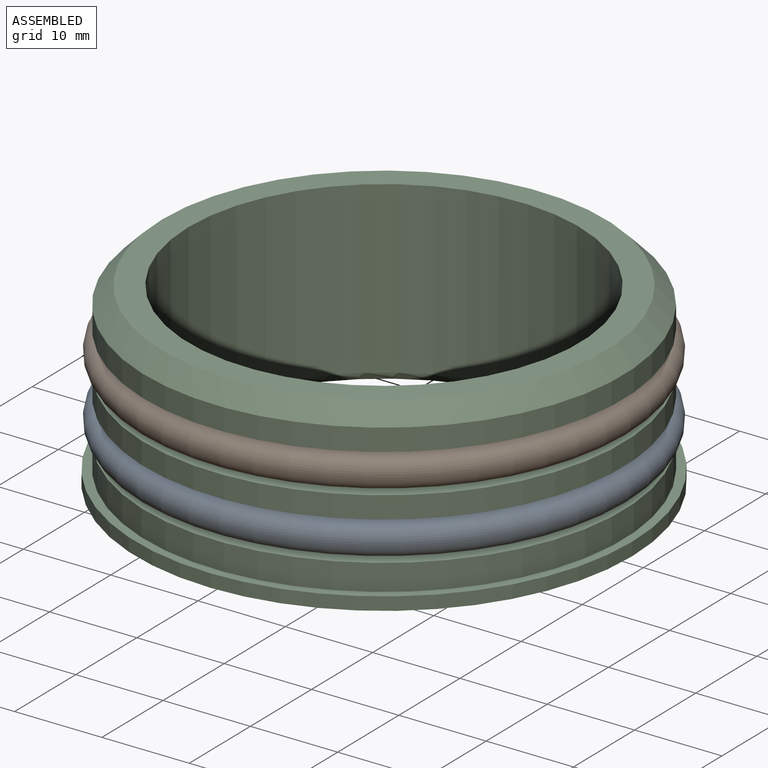
[diagram: assembled view]
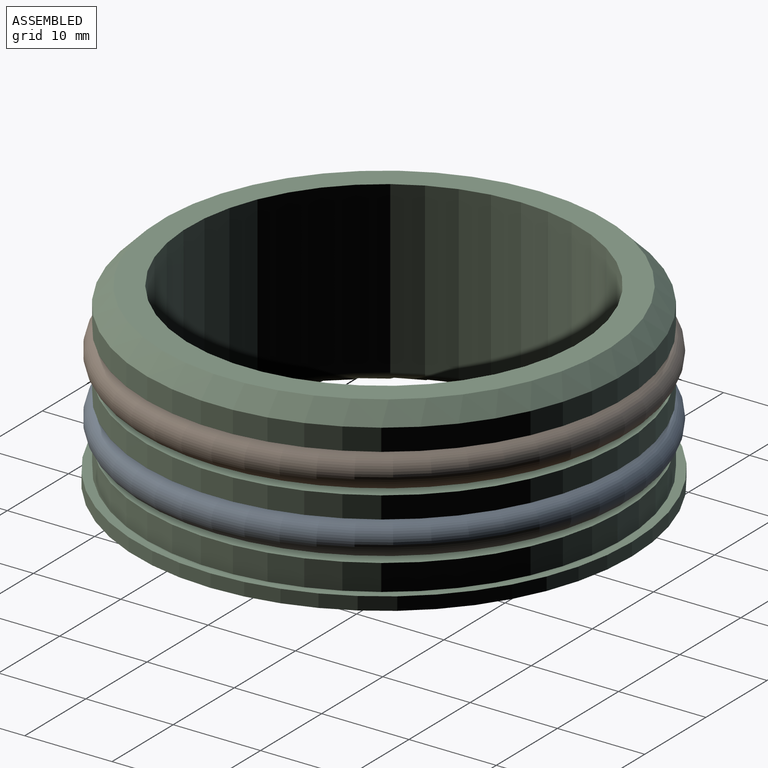
[diagram: assembled view, second angle]
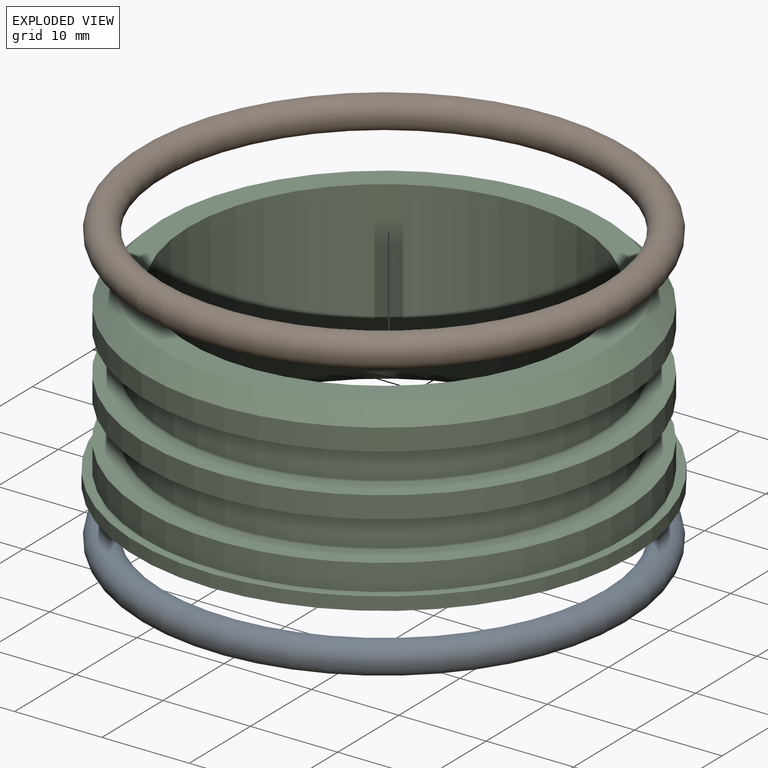
[diagram: exploded view]
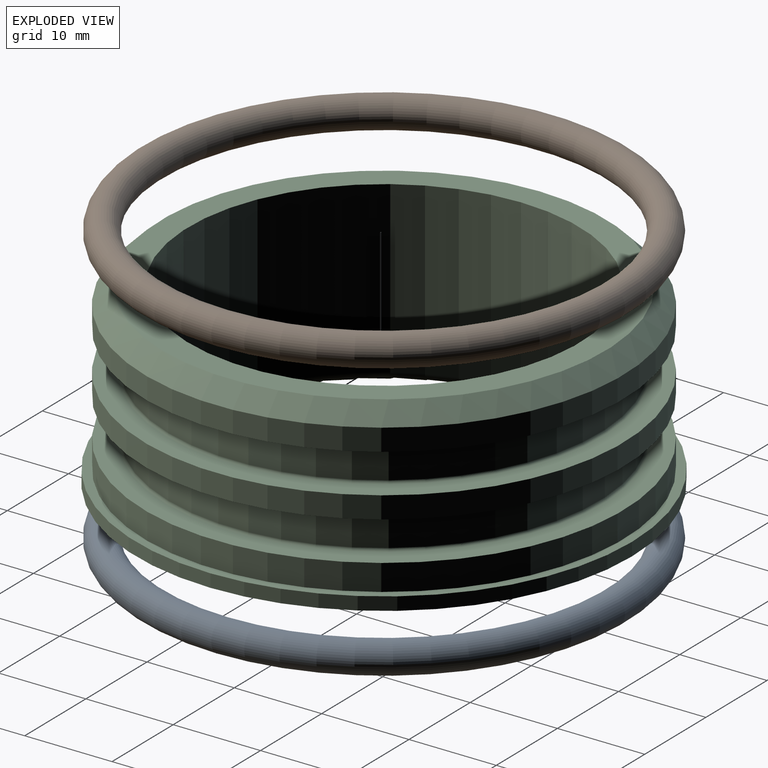
[diagram: exploded view, second angle]
ASSEMBLY  parts=3 mates=2
PART A: 1 faces, bbox 61.2x61.2x3.6 mm
  f0: torus R=26.47mm, axis (0,0,1), area 1855.2mm2
PART B: same geometry as A
PART C: 20 faces, bbox 56.8x56.8x20.5 mm
  f0: torus R=25mm, axis (0,0,-1), area 73.5mm2, adj f1,f19
  f1: cylinder r=24.7mm len=49.4mm, axis (0,0,-1), area 605.3mm2, adj f0,f2
  f2: torus R=25mm, axis (0,0,-1), area 73.5mm2, adj f1,f3
  f3: plane 54.8x54.8mm, normal (0,0,-1), area 395.1mm2, adj f2,f4
  f4: cylinder r=27.4mm len=54.8mm, axis (0,0,-1), area 430.4mm2, adj f3,f5
  f5: cone r=27.4mm half-angle=45deg, axis (0,0,-1), area 469.2mm2, adj f4,f6
  f6: plane 50.8x50.8mm, normal (0,0,1), area 450.5mm2, adj f5,f7
  f7: cylinder r=22.4mm len=44.8mm, axis (0,0,-1), area 2744.5mm2, adj f6,f8
  f8: torus R=23.4mm, axis (0,0,-1), area 224.7mm2, adj f7,f9
  f9: plane 56.8x56.8mm, normal (0,0,-1), area 813.7mm2, adj f8,f10
  f10: cylinder r=28.4mm len=56.8mm, axis (0,0,-1), area 267.7mm2, adj f9,f11
  f11: plane 56.8x56.8mm, normal (0,0,1), area 175.3mm2, adj f10,f12
  f12: cylinder r=27.4mm len=54.8mm, axis (0,0,-1), area 516.5mm2, adj f11,f13
  f13: plane 54.8x54.8mm, normal (0,0,1), area 395.1mm2, adj f12,f14
  f14: torus R=25mm, axis (0,0,-1), area 73.5mm2, adj f13,f15
  f15: cylinder r=24.7mm len=49.4mm, axis (0,0,-1), area 605.3mm2, adj f14,f16
  f16: torus R=25mm, axis (0,0,-1), area 73.5mm2, adj f15,f17
  f17: plane 54.8x54.8mm, normal (0,0,-1), area 395.1mm2, adj f16,f18
  f18: cylinder r=27.4mm len=54.8mm, axis (0,0,-1), area 430.4mm2, adj f17,f19
  f19: plane 54.8x54.8mm, normal (0,0,1), area 395.1mm2, adj f0,f18
PLACE A t=(0,0,-7)mm
PLACE B at identity
PLACE C at identity
MATE fastened C.f0 <-> B.f0  axis (0,0,-1) through (0,36.14,13.75)mm
MATE fastened A.f0 <-> C.f0  axis (0,0,1) through (0,36.14,6.75)mm
